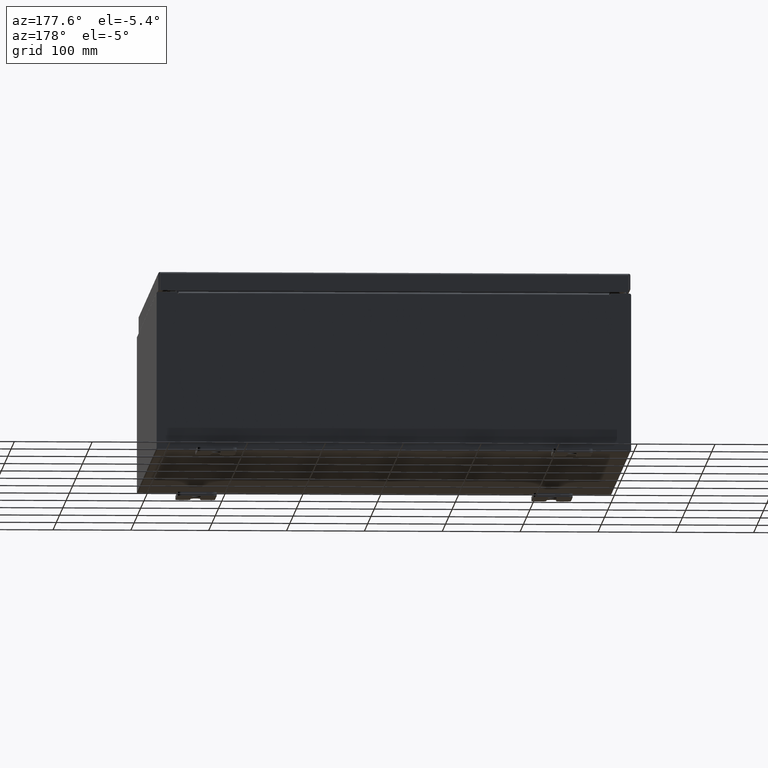
[diagram: clean part render]
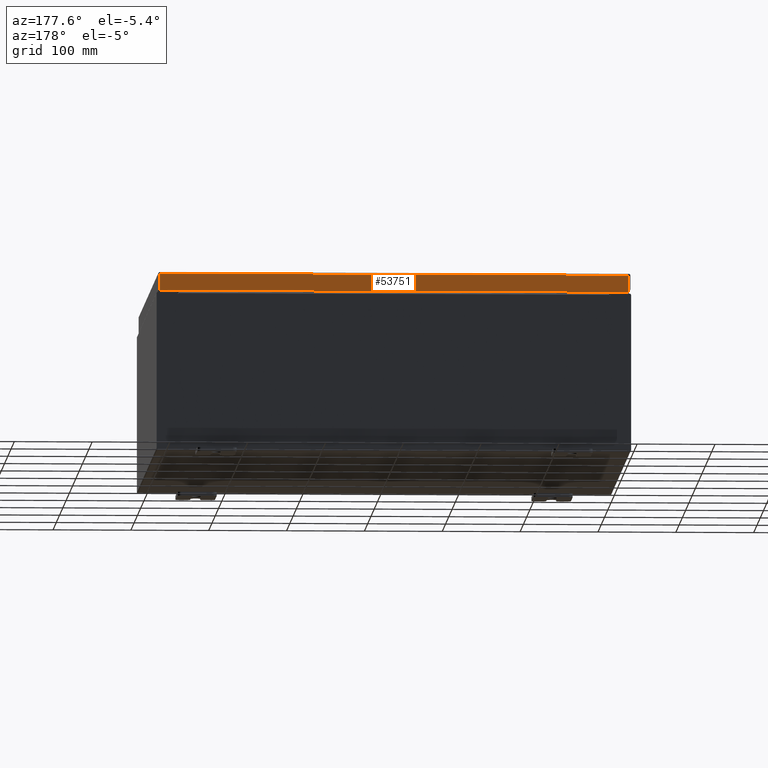
[diagram: same view with one face highlighted and labeled with its STEP entity id]
A machine part, auxiliary view. The second image highlights one B-rep face of the part: STEP entity #53751.
In plain terms, the highlighted planar face has unit normal (0, -1, -0).
Its self-contained STEP definition (entity closure, byte-faithful):
#949 = VERTEX_POINT ( 'NONE', #49527 ) ;
#6077 = EDGE_LOOP ( 'NONE', ( #6281, #34854, #38555, #57066 ) ) ;
#6281 = ORIENTED_EDGE ( 'NONE', *, *, #35483, .F. ) ;
#9338 = DIRECTION ( 'NONE',  ( 0.0000000000000000000, 2.532419924601857400E-015, -1.000000000000000000 ) ) ;
#9968 = CARTESIAN_POINT ( 'NONE',  ( -3.805002459576444600E-030, 11.93750000000000000, 3.049157650594625800E-014 ) ) ;
#12564 = VECTOR ( 'NONE', #37005, 39.37007874015748100 ) ;
#12896 = CARTESIAN_POINT ( 'NONE',  ( -11.93749999999999800, 11.93750000000000000, -0.08770000000000008300 ) ) ;
#13374 = FACE_OUTER_BOUND ( 'NONE', #6077, .T. ) ;
#13902 = DIRECTION ( 'NONE',  ( -0.0000000000000000000, 2.532419924601857400E-015, -1.000000000000000000 ) ) ;
#15260 = AXIS2_PLACEMENT_3D ( 'NONE', #9968, #24971, #59263 ) ;
#16208 = VECTOR ( 'NONE', #13902, 39.37007874015748100 ) ;
#16593 = LINE ( 'NONE', #12896, #54206 ) ;
#17779 = LINE ( 'NONE', #48036, #16208 ) ;
#20024 = PLANE ( 'NONE',  #15260 ) ;
#24971 = DIRECTION ( 'NONE',  ( 3.187436615351995300E-031, -1.000000000000000000, -2.532419924601857400E-015 ) ) ;
#27983 = VERTEX_POINT ( 'NONE', #53539 ) ;
#32077 = CARTESIAN_POINT ( 'NONE',  ( -11.93749999999999800, 11.93750000000000200, -0.9377000000000028600 ) ) ;
#34854 = ORIENTED_EDGE ( 'NONE', *, *, #62629, .T. ) ;
#35483 = EDGE_CURVE ( 'NONE', #58120, #949, #16593, .T. ) ;
#36521 = VERTEX_POINT ( 'NONE', #49335 ) ;
#37005 = DIRECTION ( 'NONE',  ( 1.000000000000000000, -4.379057701015054300E-047, 1.258652478756310100E-016 ) ) ;
#38555 = ORIENTED_EDGE ( 'NONE', *, *, #45440, .F. ) ;
#42326 = DIRECTION ( 'NONE',  ( -1.000000000000000000, -8.693008950959990500E-032, -9.153836209136798400E-017 ) ) ;
#45440 = EDGE_CURVE ( 'NONE', #36521, #27983, #63196, .T. ) ;
#48036 = CARTESIAN_POINT ( 'NONE',  ( -11.84865786437626600, 11.93750000000000000, -0.07469999999999980800 ) ) ;
#49335 = CARTESIAN_POINT ( 'NONE',  ( -11.84865786437626600, 11.93750000000000200, -0.9377000000000028600 ) ) ;
#49527 = CARTESIAN_POINT ( 'NONE',  ( -11.84865786437626600, 11.93750000000000000, -0.08769999999999898700 ) ) ;
#51313 = VECTOR ( 'NONE', #9338, 39.37007874015748100 ) ;
#52837 = LINE ( 'NONE', #63160, #51313 ) ;
#53539 = CARTESIAN_POINT ( 'NONE',  ( 11.84865786437626900, 11.93750000000000200, -0.9376999999999997600 ) ) ;
#53751 = ADVANCED_FACE ( 'NONE', ( #13374 ), #20024, .F. ) ;
#54206 = VECTOR ( 'NONE', #42326, 39.37007874015748100 ) ;
#57066 = ORIENTED_EDGE ( 'NONE', *, *, #59228, .F. ) ;
#57088 = CARTESIAN_POINT ( 'NONE',  ( 11.84865786437626900, 11.93750000000000000, -0.08769999999999789100 ) ) ;
#58120 = VERTEX_POINT ( 'NONE', #57088 ) ;
#59228 = EDGE_CURVE ( 'NONE', #949, #36521, #17779, .T. ) ;
#59263 = DIRECTION ( 'NONE',  ( 0.0000000000000000000, 2.532419924601857400E-015, -1.000000000000000000 ) ) ;
#62629 = EDGE_CURVE ( 'NONE', #58120, #27983, #52837, .T. ) ;
#63160 = CARTESIAN_POINT ( 'NONE',  ( 11.84865786437626900, 11.93750000000000000, 3.049157650594625800E-014 ) ) ;
#63196 = LINE ( 'NONE', #32077, #12564 ) ;